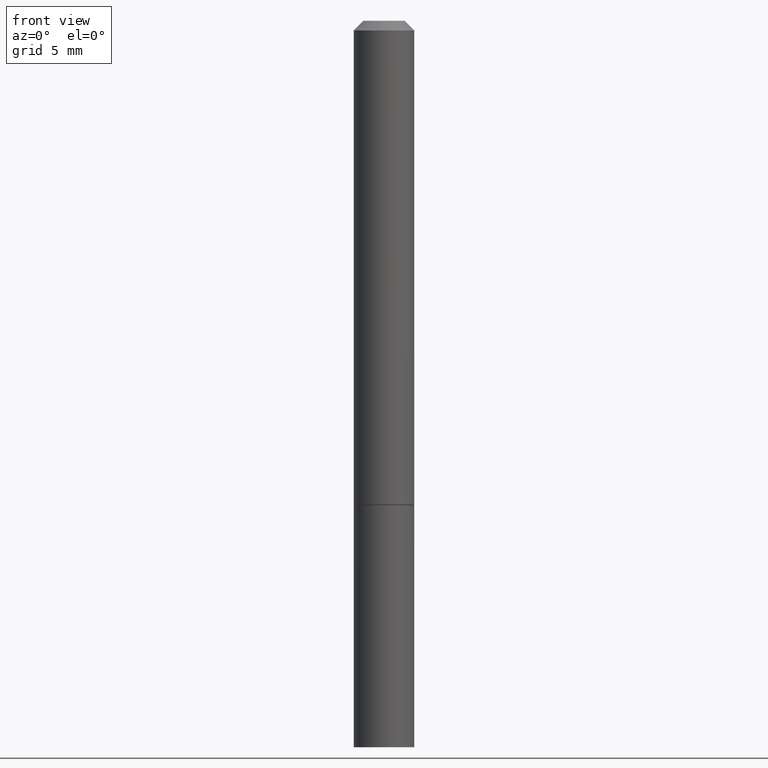
[diagram: clean part render]
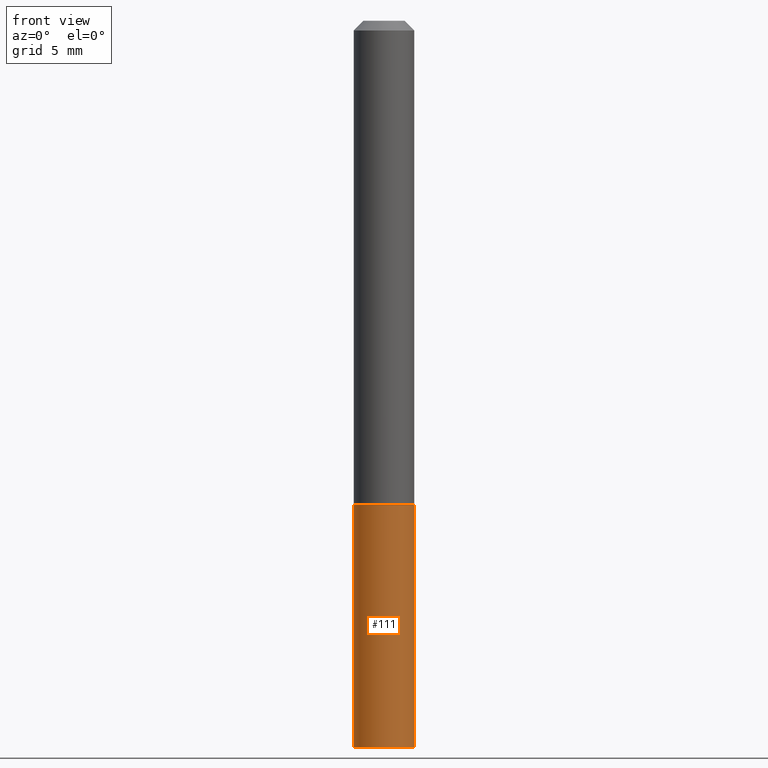
[diagram: same view with one face highlighted and labeled with its STEP entity id]
A machine part, front view. The second image highlights one B-rep face of the part: STEP entity #111.
In plain terms, the highlighted cylindrical surface (edge-blend (fillet) strip) has radius 1.5875 mm, axis along (-0, 0, 1).
Its self-contained STEP definition (entity closure, byte-faithful):
#24 = VERTEX_POINT ( 'NONE', #155 ) ;
#27 = AXIS2_PLACEMENT_3D ( 'NONE', #306, #137, #164 ) ;
#35 = CARTESIAN_POINT ( 'NONE',  ( 3.668203209277704895E-29, -5.237222008264718177E-15, -1.500000000000000222 ) ) ;
#54 = CARTESIAN_POINT ( 'NONE',  ( -0.06250000000000001388, 4.440892098500627148E-16, -3.074334431409317165E-30 ) ) ;
#57 = DIRECTION ( 'NONE',  ( 1.000000000000000000, -6.982962677686261189E-15, 0.000000000000000000 ) ) ;
#63 = VECTOR ( 'NONE', #143, 39.37007874015748143 ) ;
#87 = DIRECTION ( 'NONE',  ( -2.445468806185136597E-29, 3.491481338843145583E-15, 1.000000000000000000 ) ) ;
#106 = CYLINDRICAL_SURFACE ( 'NONE', #27, 0.06250000000000001388 ) ;
#111 = ADVANCED_FACE ( 'NONE', ( #338 ), #106, .T. ) ;
#132 = VERTEX_POINT ( 'NONE', #366 ) ;
#134 = AXIS2_PLACEMENT_3D ( 'NONE', #277, #140, #280 ) ;
#137 = DIRECTION ( 'NONE',  ( -2.445468806185136597E-29, 3.491481338843145583E-15, 1.000000000000000000 ) ) ;
#138 = VECTOR ( 'NONE', #251, 39.37007874015748143 ) ;
#140 = DIRECTION ( 'NONE',  ( -2.445468806185136597E-29, 3.491481338843145583E-15, 1.000000000000000000 ) ) ;
#143 = DIRECTION ( 'NONE',  ( -2.445468806185136877E-29, 3.491481338843145188E-15, 1.000000000000000000 ) ) ;
#145 = AXIS2_PLACEMENT_3D ( 'NONE', #35, #87, #57 ) ;
#155 = CARTESIAN_POINT ( 'NONE',  ( -0.06250000000000001388, -3.920262463703869855E-15, -1.000000000000000222 ) ) ;
#159 = EDGE_CURVE ( 'NONE', #214, #24, #249, .T. ) ;
#164 = DIRECTION ( 'NONE',  ( 1.000000000000000000, -6.982962677686267499E-15, 4.876176775795935793E-29 ) ) ;
#177 = EDGE_CURVE ( 'NONE', #24, #132, #211, .T. ) ;
#179 = CARTESIAN_POINT ( 'NONE',  ( 0.06250000000000001388, -5.673657175620109846E-15, -1.500000000000000222 ) ) ;
#180 = LINE ( 'NONE', #341, #63 ) ;
#190 = ORIENTED_EDGE ( 'NONE', *, *, #159, .F. ) ;
#211 = CIRCLE ( 'NONE', #134, 0.06250000000000001388 ) ;
#214 = VERTEX_POINT ( 'NONE', #336 ) ;
#247 = ORIENTED_EDGE ( 'NONE', *, *, #343, .T. ) ;
#248 = ORIENTED_EDGE ( 'NONE', *, *, #177, .F. ) ;
#249 = LINE ( 'NONE', #54, #138 ) ;
#251 = DIRECTION ( 'NONE',  ( -2.445468806185136877E-29, 3.491481338843145188E-15, 1.000000000000000000 ) ) ;
#269 = VERTEX_POINT ( 'NONE', #179 ) ;
#270 = ORIENTED_EDGE ( 'NONE', *, *, #282, .T. ) ;
#272 = EDGE_LOOP ( 'NONE', ( #190, #270, #247, #248 ) ) ;
#277 = CARTESIAN_POINT ( 'NONE',  ( 2.445468806185136877E-29, -3.491481338843145977E-15, -1.000000000000000222 ) ) ;
#280 = DIRECTION ( 'NONE',  ( 1.000000000000000000, -6.982962677686269077E-15, 0.000000000000000000 ) ) ;
#282 = EDGE_CURVE ( 'NONE', #214, #269, #326, .T. ) ;
#306 = CARTESIAN_POINT ( 'NONE',  ( 0.000000000000000000, 0.000000000000000000, 0.000000000000000000 ) ) ;
#326 = CIRCLE ( 'NONE', #145, 0.06250000000000001388 ) ;
#336 = CARTESIAN_POINT ( 'NONE',  ( -0.06250000000000001388, -3.920262463703869855E-15, -1.500000000000000222 ) ) ;
#338 = FACE_OUTER_BOUND ( 'NONE', #272, .T. ) ;
#341 = CARTESIAN_POINT ( 'NONE',  ( 0.06250000000000001388, -4.364351673553918173E-16, 3.047610484872460571E-30 ) ) ;
#343 = EDGE_CURVE ( 'NONE', #269, #132, #180, .T. ) ;
#366 = CARTESIAN_POINT ( 'NONE',  ( 0.06250000000000001388, -3.927916506198537646E-15, -1.000000000000000222 ) ) ;